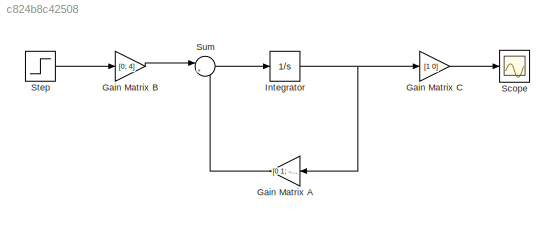
MODEL slx_c824b8c42508
KIND model
CONFIG AbsTol = auto
CONFIG EnableMultiTasking = off
CONFIG FixedStep = auto
CONFIG MaxStep = auto
CONFIG MinStep = auto
CONFIG RelTol = 1e-3
CONFIG SampleTimeConstraint = Unconstrained
CONFIG SolverName = VariableStepAuto
CONFIG StartTime = 0.0
CONFIG StopTime = 10.0
BLOCK [Gain] Gain Matrix A
  Gain = [0 1; -4 -2]
  Multiplication = Matrix(K*u)
  NameLocation = top
BLOCK [Gain] Gain Matrix B
  Gain = [0; 4]
  Multiplication = Matrix(K*u)
BLOCK [Gain] Gain Matrix C
  Gain = [1 0]
  Multiplication = Matrix(K*u)
BLOCK [Integrator] Integrator
  Ports = [1, 1]
BLOCK [Scope] Scope
  Floating = off
  NumInputPorts = 1
  Ports = [1]
  ScopeSpecificationString = Simulink.scopes.TimeScopeBlockCfg('CurrentConfiguration', extmgr.ConfigurationSet(extmgr.Configuration('Core','General UI',true),extmgr.Configuration('Core','Source UI',true),extmgr.Configuration('Sources','WiredSimulink',true),extmgr.Configuration('Visuals','Time Domain',true,'SerializedDisplays',{struct('MinYLimReal','-0.1453','MaxYLimReal','1.30768','YLabelReal','','MinYLimMag','0.00000','MaxYL...<+1363ch>
BLOCK [Step] Step
  SampleTime = 0
  Time = 0
BLOCK [Sum] Sum
  Inputs = |++
  Ports = [2, 1]
LINE Gain Matrix A:1 -> Sum:2
LINE Gain Matrix B:1 -> Sum:1
LINE Gain Matrix C:1 -> Scope:1
NET Integrator:1 -> Gain Matrix A:1, Gain Matrix C:1
LINE Step:1 -> Gain Matrix B:1
LINE Sum:1 -> Integrator:1
note: NET lines group one-source signal fan-out (src -> all destinations, sorted); 1:1 wires keep LINE
